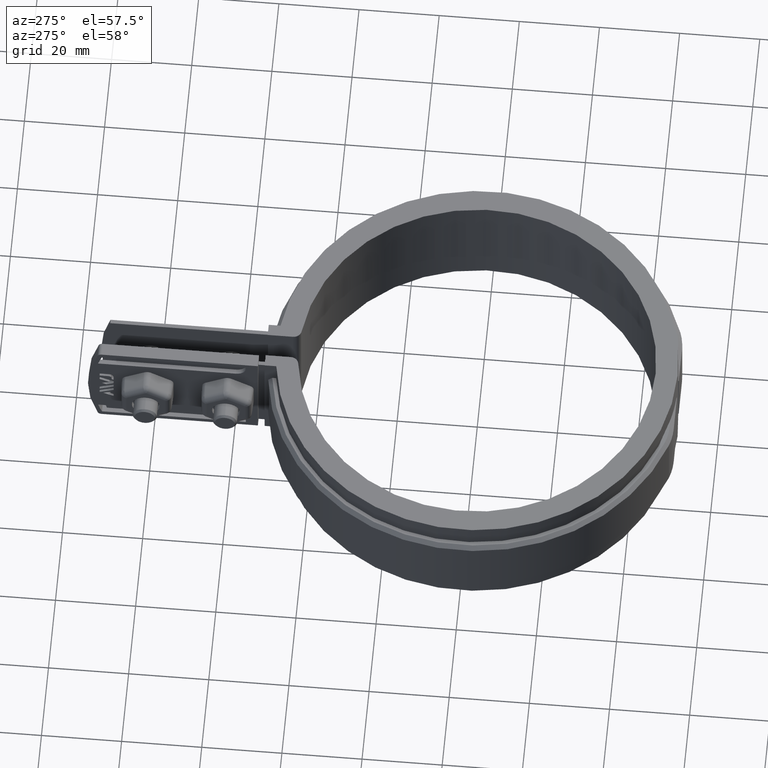
[diagram: clean part render]
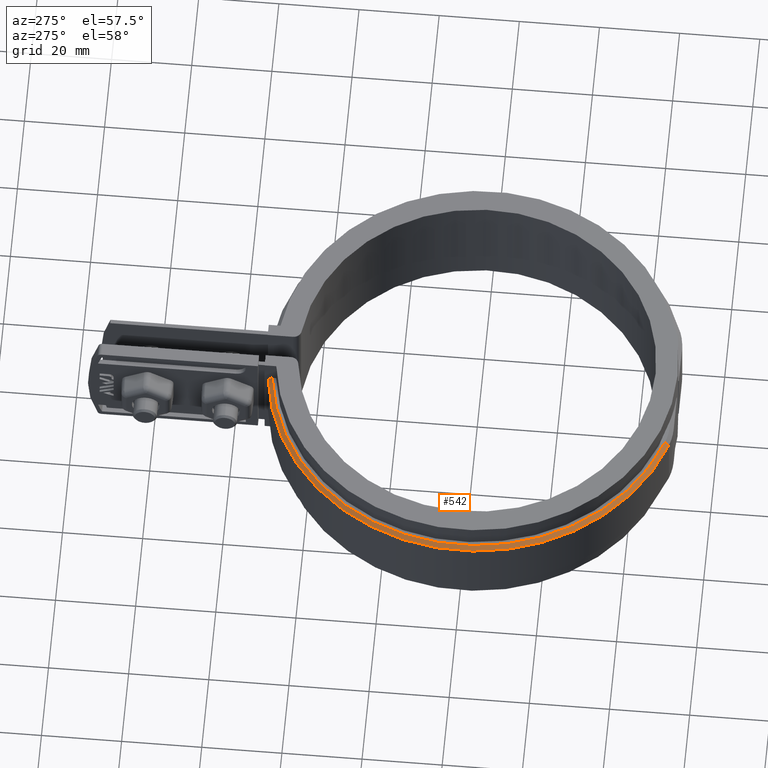
[diagram: same view with one face highlighted and labeled with its STEP entity id]
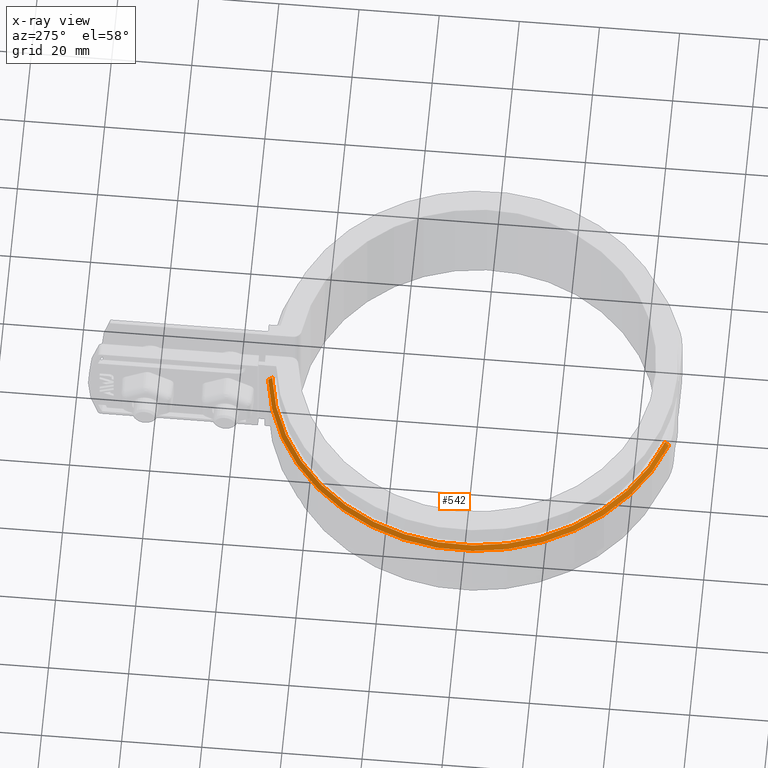
[diagram: x-ray of the same camera — body ghosted, the highlighted face saturated]
A machine part, auxiliary view. The second image highlights one B-rep face of the part: STEP entity #542.
The next image is the same camera in x-ray: the body ghosted, the highlighted face saturated — about 0% of this face is hidden behind the body in this view.
In plain terms, the highlighted conical surface has half-angle 45 deg.
Its self-contained STEP definition (entity closure, byte-faithful):
#542 = ADVANCED_FACE( '', ( #1014 ), #1015, .T. );
#1014 = FACE_OUTER_BOUND( '', #2099, .T. );
#1015 = CONICAL_SURFACE( '', #2100, 51.0000000000000, 0.785398163397448 );
#2099 = EDGE_LOOP( '', ( #5014, #5015, #5016, #5017 ) );
#2100 = AXIS2_PLACEMENT_3D( '', #5018, #5019, #5020 );
#5014 = ORIENTED_EDGE( '', *, *, #7893, .F. );
#5015 = ORIENTED_EDGE( '', *, *, #7894, .F. );
#5016 = ORIENTED_EDGE( '', *, *, #7895, .F. );
#5017 = ORIENTED_EDGE( '', *, *, #7896, .F. );
#5018 = CARTESIAN_POINT( '', ( 0.000000000000000, 6.93889390390723E-015, 8.50000000000000 ) );
#5019 = DIRECTION( '', ( 0.000000000000000, 0.000000000000000, -1.00000000000000 ) );
#5020 = DIRECTION( '', ( -1.00000000000000, 0.000000000000000, 0.000000000000000 ) );
#7893 = EDGE_CURVE( '', #9125, #9126, #9127, .T. );
#7894 = EDGE_CURVE( '', #8851, #9125, #9128, .T. );
#7895 = EDGE_CURVE( '', #9129, #8851, #9130, .T. );
#7896 = EDGE_CURVE( '', #9126, #9129, #9131, .T. );
#8851 = VERTEX_POINT( '', #11973 );
#9125 = VERTEX_POINT( '', #12844 );
#9126 = VERTEX_POINT( '', #12845 );
#9127 = B_SPLINE_CURVE_WITH_KNOTS( '', 3, ( #12846, #12847, #12848, #12849 ), .UNSPECIFIED., .F., .F., ( 4, 4 ), ( 707.033487834706, 707.034906904834 ), .UNSPECIFIED. );
#9128 = CIRCLE( '', #12850, 52.0000000000000 );
#9129 = VERTEX_POINT( '', #12851 );
#9130 = LINE( '', #12852, #12853 );
#9131 = CIRCLE( '', #12854, 51.0000000000000 );
#11973 = CARTESIAN_POINT( '', ( -16.6585009458195, -49.2594594594595, 7.49999999999995 ) );
#12844 = CARTESIAN_POINT( '', ( -5.99999999999999, 51.6526862805798, 7.50000000000000 ) );
#12845 = CARTESIAN_POINT( '', ( -5.99999999999999, 50.6458290484024, 8.50000000000000 ) );
#12846 = CARTESIAN_POINT( '', ( -5.99999999999999, 51.6526862806061, 7.49999999997391 ) );
#12847 = CARTESIAN_POINT( '', ( -5.99999999999999, 51.3170892425570, 7.83335554849398 ) );
#12848 = CARTESIAN_POINT( '', ( -5.99999999999999, 50.9814705788267, 8.16668934173701 ) );
#12849 = CARTESIAN_POINT( '', ( -5.99999999999999, 50.6458290483998, 8.50000000000262 ) );
#12850 = AXIS2_PLACEMENT_3D( '', #14933, #14934, #14935 );
#12851 = CARTESIAN_POINT( '', ( -16.3381451583999, -48.3121621621621, 8.50000000000000 ) );
#12852 = CARTESIAN_POINT( '', ( -16.3381451583999, -48.3121621621621, 8.50000000000000 ) );
#12853 = VECTOR( '', #14936, 1000.00000000000 );
#12854 = AXIS2_PLACEMENT_3D( '', #14937, #14938, #14939 );
#14933 = CARTESIAN_POINT( '', ( 0.000000000000000, 6.93889390390723E-015, 7.50000000000000 ) );
#14934 = DIRECTION( '', ( 0.000000000000000, 0.000000000000000, -1.00000000000000 ) );
#14935 = DIRECTION( '', ( -1.00000000000000, 0.000000000000000, 0.000000000000000 ) );
#14936 = DIRECTION( '', ( -0.226525749676757, -0.669840342718608, -0.707106781186548 ) );
#14937 = CARTESIAN_POINT( '', ( 0.000000000000000, 6.93889390390723E-015, 8.50000000000000 ) );
#14938 = DIRECTION( '', ( 0.000000000000000, 0.000000000000000, 1.00000000000000 ) );
#14939 = DIRECTION( '', ( 1.00000000000000, 0.000000000000000, 0.000000000000000 ) );